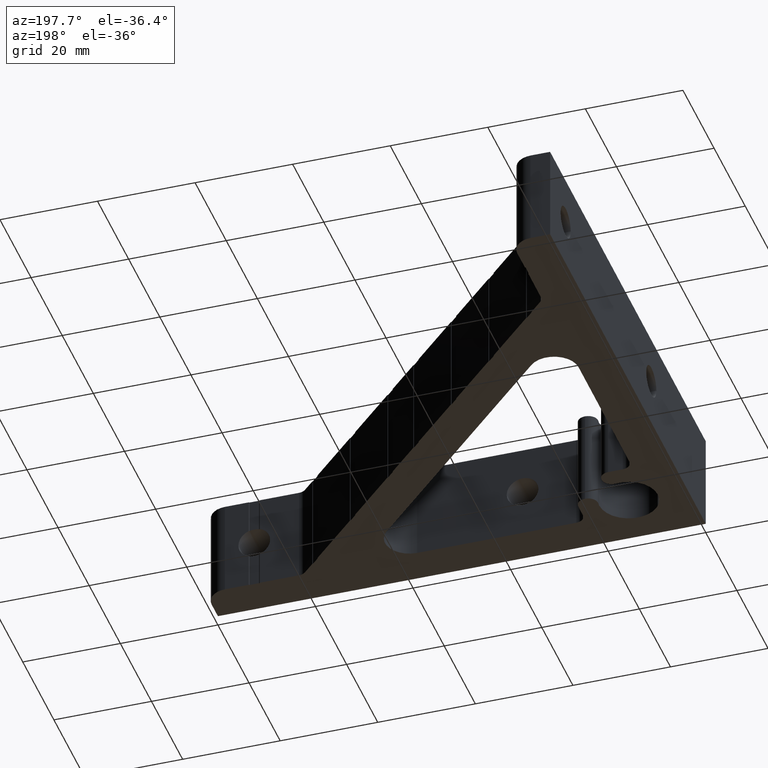
[diagram: clean part render]
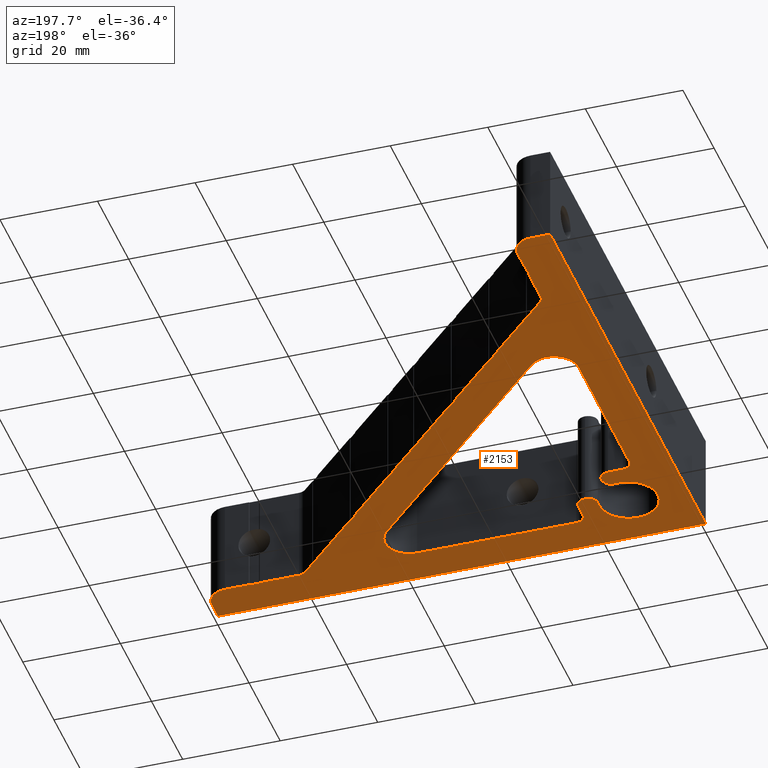
[diagram: same view with one face highlighted and labeled with its STEP entity id]
A machine part, auxiliary view. The second image highlights one B-rep face of the part: STEP entity #2153.
In plain terms, the highlighted planar face has unit normal (-0, 0, -1).
Its self-contained STEP definition (entity closure, byte-faithful):
#1 = DIRECTION ( 'NONE',  ( 0.0000000000000000000, 1.000000000000000000, 0.0000000000000000000 ) ) ;
#6 = CARTESIAN_POINT ( 'NONE',  ( 8.585786437626911300, 79.41421356237306400, 0.0000000000000000000 ) ) ;
#7 = DIRECTION ( 'NONE',  ( -0.7071067811865477900, 0.7071067811865473500, -0.0000000000000000000 ) ) ;
#16 = CARTESIAN_POINT ( 'NONE',  ( 33.92480755315680300, 95.99999999999997200, 0.0000000000000000000 ) ) ;
#17 = DIRECTION ( 'NONE',  ( -0.0000000000000000000, -1.000000000000000000, -0.0000000000000000000 ) ) ;
#18 = CARTESIAN_POINT ( 'NONE',  ( 24.00000000000001400, 8.000000000000000000, 0.0000000000000000000 ) ) ;
#19 = DIRECTION ( 'NONE',  ( 1.000000000000000000, 0.0000000000000000000, 0.0000000000000000000 ) ) ;
#20 = CARTESIAN_POINT ( 'NONE',  ( -2.070710678118733700, 89.92928932188118600, 0.0000000000000000000 ) ) ;
#21 = DIRECTION ( 'NONE',  ( -0.7071067811865510100, 0.7071067811865441300, 0.0000000000000000000 ) ) ;
#24 = CARTESIAN_POINT ( 'NONE',  ( 3.999999999988505600, 10.80025743823635800, 0.0000000000000000000 ) ) ;
#25 = DIRECTION ( 'NONE',  ( 1.000000000000000000, -1.349298206681400400E-013, -0.0000000000000000000 ) ) ;
#26 = CARTESIAN_POINT ( 'NONE',  ( 75.64410764316312500, 95.99999999999997200, 0.0000000000000000000 ) ) ;
#27 = DIRECTION ( 'NONE',  ( -0.0000000000000000000, -1.000000000000000000, -0.0000000000000000000 ) ) ;
#28 = CARTESIAN_POINT ( 'NONE',  ( 53.01669064519660400, 95.99999999999757000, 0.0000000000000000000 ) ) ;
#29 = DIRECTION ( 'NONE',  ( -4.906538933387633100E-014, -1.000000000000000000, -0.0000000000000000000 ) ) ;
#57 = CARTESIAN_POINT ( 'NONE',  ( 4.000000000003072200, 33.42767443619350600, 0.0000000000000000000 ) ) ;
#58 = DIRECTION ( 'NONE',  ( 1.000000000000000000, 4.906538933386670100E-014, -0.0000000000000000000 ) ) ;
#61 = CARTESIAN_POINT ( 'NONE',  ( 8.585786437626911300, 79.41421356237306400, 0.0000000000000000000 ) ) ;
#62 = DIRECTION ( 'NONE',  ( -0.7071067811865477900, 0.7071067811865473500, -0.0000000000000000000 ) ) ;
#63 = CARTESIAN_POINT ( 'NONE',  ( 80.82842712474619900, 7.999999999999998200, 0.0000000000000000000 ) ) ;
#64 = DIRECTION ( 'NONE',  ( -1.000000000000000000, -1.143403844967386000E-016, -0.0000000000000000000 ) ) ;
#69 = CARTESIAN_POINT ( 'NONE',  ( 56.61522368914977200, 13.00000000000000200, 0.0000000000000000000 ) ) ;
#70 = DIRECTION ( 'NONE',  ( 0.0000000000000000000, 0.0000000000000000000, 1.000000000000000000 ) ) ;
#71 = DIRECTION ( 'NONE',  ( -1.000000000000000000, 0.0000000000000000000, 0.0000000000000000000 ) ) ;
#76 = CARTESIAN_POINT ( 'NONE',  ( 19.93725393319377300, 13.00000000000000000, 0.0000000000000000000 ) ) ;
#77 = DIRECTION ( 'NONE',  ( -0.0000000000000000000, -0.0000000000000000000, -1.000000000000000000 ) ) ;
#78 = DIRECTION ( 'NONE',  ( 1.000000000000000000, 0.0000000000000000000, 0.0000000000000000000 ) ) ;
#91 = CARTESIAN_POINT ( 'NONE',  ( 12.99999999999999800, 19.99999999999999600, 0.0000000000000000000 ) ) ;
#92 = DIRECTION ( 'NONE',  ( -0.0000000000000000000, -0.0000000000000000000, -1.000000000000000000 ) ) ;
#93 = DIRECTION ( 'NONE',  ( 1.000000000000000000, 0.0000000000000000000, 0.0000000000000000000 ) ) ;
#119 = EDGE_CURVE ( 'NONE', #2409, #1117, #574, .T. ) ;
#121 = EDGE_CURVE ( 'NONE', #1848, #1942, #578, .T. ) ;
#123 = EDGE_CURVE ( 'NONE', #2438, #1895, #582, .T. ) ;
#126 = EDGE_CURVE ( 'NONE', #1891, #1937, #584, .T. ) ;
#128 = EDGE_CURVE ( 'NONE', #1037, #2446, #589, .T. ) ;
#130 = EDGE_CURVE ( 'NONE', #2450, #1867, #593, .T. ) ;
#133 = EDGE_CURVE ( 'NONE', #1011, #1935, #599, .T. ) ;
#134 = EDGE_CURVE ( 'NONE', #1898, #1916, #601, .T. ) ;
#139 = EDGE_CURVE ( 'NONE', #1848, #1916, #611, .T. ) ;
#143 = EDGE_CURVE ( 'NONE', #1072, #1091, #620, .T. ) ;
#144 = EDGE_CURVE ( 'NONE', #2419, #1941, #619, .T. ) ;
#149 = EDGE_CURVE ( 'NONE', #1051, #1135, #156, .T. ) ;
#152 = EDGE_CURVE ( 'NONE', #1889, #2421, #161, .T. ) ;
#156 = CIRCLE ( 'NONE', #1951, 6.000000000000001800 ) ;
#161 = CIRCLE ( 'NONE', #1959, 6.000000000000001800 ) ;
#181 = LINE ( 'NONE', #1310, #182 ) ;
#182 = VECTOR ( 'NONE', #1298, 1000.000000000000000 ) ;
#189 = LINE ( 'NONE', #1325, #190 ) ;
#190 = VECTOR ( 'NONE', #1305, 999.9999999999998900 ) ;
#193 = LINE ( 'NONE', #1319, #194 ) ;
#194 = VECTOR ( 'NONE', #1321, 1000.000000000000000 ) ;
#197 = LINE ( 'NONE', #1314, #198 ) ;
#198 = VECTOR ( 'NONE', #1303, 999.9999999999998900 ) ;
#205 = LINE ( 'NONE', #1306, #206 ) ;
#206 = VECTOR ( 'NONE', #1301, 999.9999999999998900 ) ;
#219 = LINE ( 'NONE', #1266, #220 ) ;
#220 = VECTOR ( 'NONE', #1221, 999.9999999999998900 ) ;
#221 = LINE ( 'NONE', #1263, #222 ) ;
#222 = VECTOR ( 'NONE', #1214, 1000.000000000000000 ) ;
#223 = CIRCLE ( 'NONE', #2720, 1.999999999999998200 ) ;
#229 = LINE ( 'NONE', #1276, #230 ) ;
#230 = VECTOR ( 'NONE', #1212, 1000.000000000000000 ) ;
#236 = LINE ( 'NONE', #1224, #237 ) ;
#237 = VECTOR ( 'NONE', #1233, 1000.000000000000000 ) ;
#238 = LINE ( 'NONE', #1205, #239 ) ;
#239 = VECTOR ( 'NONE', #1235, 1000.000000000000000 ) ;
#248 = LINE ( 'NONE', #2752, #249 ) ;
#249 = VECTOR ( 'NONE', #2735, 1000.000000000000000 ) ;
#254 = CIRCLE ( 'NONE', #2723, 2.000000000000000000 ) ;
#258 = LINE ( 'NONE', #2747, #260 ) ;
#260 = VECTOR ( 'NONE', #2741, 999.9999999999998900 ) ;
#266 = LINE ( 'NONE', #1371, #267 ) ;
#267 = VECTOR ( 'NONE', #1341, 1000.000000000000100 ) ;
#272 = LINE ( 'NONE', #1365, #273 ) ;
#273 = VECTOR ( 'NONE', #1353, 1000.000000000000100 ) ;
#276 = LINE ( 'NONE', #1354, #277 ) ;
#277 = VECTOR ( 'NONE', #1344, 1000.000000000000000 ) ;
#280 = LINE ( 'NONE', #1369, #281 ) ;
#281 = VECTOR ( 'NONE', #1355, 1000.000000000000000 ) ;
#283 = CIRCLE ( 'NONE', #2716, 2.000000000000001800 ) ;
#309 = EDGE_CURVE ( 'NONE', #2432, #1881, #181, .T. ) ;
#313 = EDGE_CURVE ( 'NONE', #1939, #1944, #189, .T. ) ;
#315 = EDGE_CURVE ( 'NONE', #1050, #2447, #193, .T. ) ;
#317 = EDGE_CURVE ( 'NONE', #2450, #1941, #197, .T. ) ;
#321 = EDGE_CURVE ( 'NONE', #1027, #2447, #205, .T. ) ;
#328 = EDGE_CURVE ( 'NONE', #1059, #1107, #219, .T. ) ;
#329 = EDGE_CURVE ( 'NONE', #1855, #2406, #221, .T. ) ;
#330 = EDGE_CURVE ( 'NONE', #1854, #1026, #223, .T. ) ;
#334 = EDGE_CURVE ( 'NONE', #1935, #1883, #229, .T. ) ;
#402 = LINE ( 'NONE', #2114, #404 ) ;
#404 = VECTOR ( 'NONE', #2104, 1000.000000000000100 ) ;
#417 = LINE ( 'NONE', #2109, #419 ) ;
#419 = VECTOR ( 'NONE', #2121, 1000.000000000000000 ) ;
#420 = LINE ( 'NONE', #2127, #421 ) ;
#421 = VECTOR ( 'NONE', #2132, 1000.000000000000000 ) ;
#422 = LINE ( 'NONE', #2124, #423 ) ;
#423 = VECTOR ( 'NONE', #2098, 1000.000000000000000 ) ;
#429 = LINE ( 'NONE', #1378, #430 ) ;
#430 = VECTOR ( 'NONE', #1377, 1000.000000000000000 ) ;
#432 = LINE ( 'NONE', #2066, #434 ) ;
#434 = VECTOR ( 'NONE', #2071, 1000.000000000000100 ) ;
#435 = LINE ( 'NONE', #2051, #436 ) ;
#436 = VECTOR ( 'NONE', #2059, 1000.000000000000000 ) ;
#440 = LINE ( 'NONE', #2069, #442 ) ;
#442 = VECTOR ( 'NONE', #2076, 1000.000000000000000 ) ;
#449 = LINE ( 'NONE', #1632, #451 ) ;
#451 = VECTOR ( 'NONE', #1630, 1000.000000000000100 ) ;
#492 = EDGE_LOOP ( 'NONE', ( #2302, #2303, #2304, #2305, #2306, #2307, #2308, #2309, #2310, #2311, #2312, #2313, #2314, #2315, #2316, #2317, #2318, #2319, #2320, #2321, #2322, #2323, #2324, #2325, #2326, #2327, #2328, #2329, #2330, #2331, #543, #544, #545, #546, #547, #548, #549, #550, #551, #552, #553, #554, #555, #556, #557, #558, #559 ) ) ;
#532 = EDGE_LOOP ( 'NONE', ( #560, #561, #562, #563, #564, #565, #566, #567, #568, #569, #570, #571, #572, #573, #2631, #2632, #2633, #2634, #2635 ) ) ;
#543 = ORIENTED_EDGE ( 'NONE', *, *, #1163, .T. ) ;
#544 = ORIENTED_EDGE ( 'NONE', *, *, #1178, .F. ) ;
#545 = ORIENTED_EDGE ( 'NONE', *, *, #2591, .T. ) ;
#546 = ORIENTED_EDGE ( 'NONE', *, *, #1960, .F. ) ;
#547 = ORIENTED_EDGE ( 'NONE', *, *, #2604, .T. ) ;
#548 = ORIENTED_EDGE ( 'NONE', *, *, #2580, .F. ) ;
#549 = ORIENTED_EDGE ( 'NONE', *, *, #134, .T. ) ;
#550 = ORIENTED_EDGE ( 'NONE', *, *, #139, .F. ) ;
#551 = ORIENTED_EDGE ( 'NONE', *, *, #121, .T. ) ;
#552 = ORIENTED_EDGE ( 'NONE', *, *, #2606, .F. ) ;
#553 = ORIENTED_EDGE ( 'NONE', *, *, #2590, .T. ) ;
#554 = ORIENTED_EDGE ( 'NONE', *, *, #2002, .F. ) ;
#555 = ORIENTED_EDGE ( 'NONE', *, *, #2589, .T. ) ;
#556 = ORIENTED_EDGE ( 'NONE', *, *, #2576, .F. ) ;
#557 = ORIENTED_EDGE ( 'NONE', *, *, #123, .F. ) ;
#558 = ORIENTED_EDGE ( 'NONE', *, *, #2006, .F. ) ;
#559 = ORIENTED_EDGE ( 'NONE', *, *, #2559, .T. ) ;
#560 = ORIENTED_EDGE ( 'NONE', *, *, #329, .T. ) ;
#561 = ORIENTED_EDGE ( 'NONE', *, *, #2549, .T. ) ;
#562 = ORIENTED_EDGE ( 'NONE', *, *, #309, .T. ) ;
#563 = ORIENTED_EDGE ( 'NONE', *, *, #1172, .T. ) ;
#564 = ORIENTED_EDGE ( 'NONE', *, *, #1189, .T. ) ;
#565 = ORIENTED_EDGE ( 'NONE', *, *, #2619, .T. ) ;
#566 = ORIENTED_EDGE ( 'NONE', *, *, #2574, .T. ) ;
#567 = ORIENTED_EDGE ( 'NONE', *, *, #2029, .T. ) ;
#568 = ORIENTED_EDGE ( 'NONE', *, *, #152, .T. ) ;
#569 = ORIENTED_EDGE ( 'NONE', *, *, #2031, .T. ) ;
#570 = ORIENTED_EDGE ( 'NONE', *, *, #149, .T. ) ;
#571 = ORIENTED_EDGE ( 'NONE', *, *, #2613, .T. ) ;
#572 = ORIENTED_EDGE ( 'NONE', *, *, #143, .T. ) ;
#573 = ORIENTED_EDGE ( 'NONE', *, *, #2010, .T. ) ;
#574 = LINE ( 'NONE', #1034, #575 ) ;
#575 = VECTOR ( 'NONE', #1052, 1000.000000000000000 ) ;
#578 = LINE ( 'NONE', #1098, #579 ) ;
#579 = VECTOR ( 'NONE', #1021, 1000.000000000000000 ) ;
#582 = CIRCLE ( 'NONE', #1967, 2.000000000000001800 ) ;
#584 = LINE ( 'NONE', #1035, #586 ) ;
#586 = VECTOR ( 'NONE', #1119, 1000.000000000000100 ) ;
#589 = LINE ( 'NONE', #1124, #590 ) ;
#590 = VECTOR ( 'NONE', #1109, 1000.000000000000200 ) ;
#593 = LINE ( 'NONE', #1033, #594 ) ;
#594 = VECTOR ( 'NONE', #1082, 1000.000000000000000 ) ;
#599 = LINE ( 'NONE', #1064, #600 ) ;
#600 = VECTOR ( 'NONE', #1108, 1000.000000000000000 ) ;
#601 = LINE ( 'NONE', #1083, #602 ) ;
#602 = VECTOR ( 'NONE', #1019, 1000.000000000000000 ) ;
#611 = LINE ( 'NONE', #1040, #612 ) ;
#612 = VECTOR ( 'NONE', #1121, 1000.000000000000100 ) ;
#619 = LINE ( 'NONE', #1042, #621 ) ;
#620 = CIRCLE ( 'NONE', #1961, 2.000000000000001800 ) ;
#621 = VECTOR ( 'NONE', #1058, 1000.000000000000000 ) ;
#658 = AXIS2_PLACEMENT_3D ( 'NONE', #1414, #1415, #1422 ) ;
#673 = AXIS2_PLACEMENT_3D ( 'NONE', #1396, #1397, #1403 ) ;
#685 = CARTESIAN_POINT ( 'NONE',  ( 15.00000000000000000, 19.93725393319376900, 0.0000000000000000000 ) ) ;
#686 = CARTESIAN_POINT ( 'NONE',  ( 79.41421356237309200, 8.585786437626909500, 0.0000000000000000000 ) ) ;
#688 = CARTESIAN_POINT ( 'NONE',  ( 64.33039914417834400, 23.66960085582164900, 0.0000000000000000000 ) ) ;
#690 = CARTESIAN_POINT ( 'NONE',  ( 7.900000000000000400, 88.99999999999998600, 0.0000000000000000000 ) ) ;
#696 = CARTESIAN_POINT ( 'NONE',  ( 10.00000000000002500, 22.00000000000000000, 0.0000000000000000000 ) ) ;
#700 = CARTESIAN_POINT ( 'NONE',  ( 56.61522368914965900, 8.000000000000000000, 0.0000000000000000000 ) ) ;
#872 = LINE ( 'NONE', #1406, #873 ) ;
#873 = VECTOR ( 'NONE', #1391, 1000.000000000000000 ) ;
#882 = LINE ( 'NONE', #1399, #883 ) ;
#883 = VECTOR ( 'NONE', #1398, 1000.000000000000000 ) ;
#885 = CIRCLE ( 'NONE', #673, 2.000000000000000000 ) ;
#888 = CIRCLE ( 'NONE', #658, 6.000000000000001800 ) ;
#914 = FACE_OUTER_BOUND ( 'NONE', #492, .T. ) ;
#915 = FACE_BOUND ( 'NONE', #532, .T. ) ;
#958 = CIRCLE ( 'NONE', #2865, 5.000000000000000900 ) ;
#968 = CIRCLE ( 'NONE', #2863, 4.000000000000003600 ) ;
#974 = LINE ( 'NONE', #1512, #975 ) ;
#975 = VECTOR ( 'NONE', #1549, 1000.000000000000100 ) ;
#1000 = LINE ( 'NONE', #2755, #1002 ) ;
#1001 = CIRCLE ( 'NONE', #1981, 4.000000000000000900 ) ;
#1002 = VECTOR ( 'NONE', #2754, 1000.000000000000000 ) ;
#1011 = VERTEX_POINT ( 'NONE', #1269 ) ;
#1015 = CARTESIAN_POINT ( 'NONE',  ( 19.93725393319377300, 13.00000000000000000, 0.0000000000000000000 ) ) ;
#1019 = DIRECTION ( 'NONE',  ( 9.813077866774303200E-014, -1.000000000000000000, -0.0000000000000000000 ) ) ;
#1021 = DIRECTION ( 'NONE',  ( 1.000000000000000000, -0.0000000000000000000, -0.0000000000000000000 ) ) ;
#1022 = CARTESIAN_POINT ( 'NONE',  ( 12.00000000000000000, 11.99999999999999800, 0.0000000000000000000 ) ) ;
#1026 = VERTEX_POINT ( 'NONE', #1216 ) ;
#1027 = VERTEX_POINT ( 'NONE', #1237 ) ;
#1028 = DIRECTION ( 'NONE',  ( 0.0000000000000000000, 0.0000000000000000000, 1.000000000000000000 ) ) ;
#1032 = DIRECTION ( 'NONE',  ( 1.000000000000000000, 0.0000000000000000000, 0.0000000000000000000 ) ) ;
#1033 = CARTESIAN_POINT ( 'NONE',  ( 22.61109905417203700, 95.99999999999997200, 0.0000000000000000000 ) ) ;
#1034 = CARTESIAN_POINT ( 'NONE',  ( 4.000000000000001800, 7.900000000000003900, 0.0000000000000000000 ) ) ;
#1035 = CARTESIAN_POINT ( 'NONE',  ( -2.070710678118637700, 89.92928932188134200, 0.0000000000000000000 ) ) ;
#1036 = VERTEX_POINT ( 'NONE', #1277 ) ;
#1037 = VERTEX_POINT ( 'NONE', #1262 ) ;
#1040 = CARTESIAN_POINT ( 'NONE',  ( -2.070710678118643500, 89.92928932188132800, 0.0000000000000000000 ) ) ;
#1041 = CARTESIAN_POINT ( 'NONE',  ( 80.82842712474619900, 9.999999999999998200, 0.0000000000000000000 ) ) ;
#1042 = CARTESIAN_POINT ( 'NONE',  ( 3.999999999997955900, 75.14697452620313800, 0.0000000000000000000 ) ) ;
#1050 = VERTEX_POINT ( 'NONE', #1255 ) ;
#1051 = VERTEX_POINT ( 'NONE', #1222 ) ;
#1052 = DIRECTION ( 'NONE',  ( -1.000000000000000000, 0.0000000000000000000, 0.0000000000000000000 ) ) ;
#1058 = DIRECTION ( 'NONE',  ( 1.000000000000000000, -9.813077866772377100E-014, -0.0000000000000000000 ) ) ;
#1059 = VERTEX_POINT ( 'NONE', #1272 ) ;
#1060 = CARTESIAN_POINT ( 'NONE',  ( 12.00000000000000000, 11.99999999999999800, 0.0000000000000000000 ) ) ;
#1064 = CARTESIAN_POINT ( 'NONE',  ( 0.0000000000000000000, 0.0000000000000000000, 0.0000000000000000000 ) ) ;
#1068 = VERTEX_POINT ( 'NONE', #1213 ) ;
#1072 = VERTEX_POINT ( 'NONE', #1239 ) ;
#1075 = DIRECTION ( 'NONE',  ( 1.000000000000000000, 0.0000000000000000000, 0.0000000000000000000 ) ) ;
#1077 = DIRECTION ( 'NONE',  ( 1.000000000000000000, 0.0000000000000000000, 0.0000000000000000000 ) ) ;
#1082 = DIRECTION ( 'NONE',  ( -0.0000000000000000000, -1.000000000000000000, -0.0000000000000000000 ) ) ;
#1083 = CARTESIAN_POINT ( 'NONE',  ( 64.33039914417125300, 96.00000000000589800, 0.0000000000000000000 ) ) ;
#1084 = VERTEX_POINT ( 'NONE', #1206 ) ;
#1091 = VERTEX_POINT ( 'NONE', #1207 ) ;
#1094 = DIRECTION ( 'NONE',  ( -0.0000000000000000000, -0.0000000000000000000, -1.000000000000000000 ) ) ;
#1095 = DIRECTION ( 'NONE',  ( -0.0000000000000000000, -0.0000000000000000000, -1.000000000000000000 ) ) ;
#1097 = DIRECTION ( 'NONE',  ( 1.000000000000000000, 0.0000000000000000000, 0.0000000000000000000 ) ) ;
#1098 = CARTESIAN_POINT ( 'NONE',  ( 4.000000000000001800, 22.11396593721123700, 0.0000000000000000000 ) ) ;
#1107 = VERTEX_POINT ( 'NONE', #1220 ) ;
#1108 = DIRECTION ( 'NONE',  ( 1.000000000000000000, 0.0000000000000000000, 0.0000000000000000000 ) ) ;
#1109 = DIRECTION ( 'NONE',  ( -0.7071067811865458000, 0.7071067811865492400, 0.0000000000000000000 ) ) ;
#1116 = DIRECTION ( 'NONE',  ( 0.0000000000000000000, 0.0000000000000000000, 1.000000000000000000 ) ) ;
#1117 = VERTEX_POINT ( 'NONE', #1217 ) ;
#1119 = DIRECTION ( 'NONE',  ( -0.7071067811865474600, 0.7071067811865474600, 0.0000000000000000000 ) ) ;
#1121 = DIRECTION ( 'NONE',  ( -0.7071067811865474600, 0.7071067811865474600, 0.0000000000000000000 ) ) ;
#1124 = CARTESIAN_POINT ( 'NONE',  ( -2.070710678118562200, 89.92928932188142700, 0.0000000000000000000 ) ) ;
#1135 = VERTEX_POINT ( 'NONE', #1256 ) ;
#1163 = EDGE_CURVE ( 'NONE', #1891, #1931, #236, .T. ) ;
#1164 = EDGE_CURVE ( 'NONE', #1037, #1944, #238, .T. ) ;
#1169 = EDGE_CURVE ( 'NONE', #1026, #2445, #248, .T. ) ;
#1172 = EDGE_CURVE ( 'NONE', #1881, #1910, #254, .T. ) ;
#1178 = EDGE_CURVE ( 'NONE', #1036, #1931, #258, .T. ) ;
#1184 = EDGE_CURVE ( 'NONE', #1912, #2426, #266, .T. ) ;
#1187 = EDGE_CURVE ( 'NONE', #2409, #1894, #272, .T. ) ;
#1189 = EDGE_CURVE ( 'NONE', #1910, #2449, #276, .T. ) ;
#1191 = EDGE_CURVE ( 'NONE', #1859, #1922, #280, .T. ) ;
#1193 = EDGE_CURVE ( 'NONE', #1107, #2408, #283, .T. ) ;
#1201 = DIRECTION ( 'NONE',  ( -1.000000000000000000, 0.0000000000000000000, 0.0000000000000000000 ) ) ;
#1205 = CARTESIAN_POINT ( 'NONE',  ( 4.000000000004268600, 52.51955752822971100, 0.0000000000000000000 ) ) ;
#1206 = CARTESIAN_POINT ( 'NONE',  ( 7.900000000000000400, 90.99999999999998600, 0.0000000000000000000 ) ) ;
#1207 = CARTESIAN_POINT ( 'NONE',  ( 19.93725393319377300, 15.00000000000000000, 0.0000000000000000000 ) ) ;
#1212 = DIRECTION ( 'NONE',  ( -0.0000000000000000000, 1.000000000000000000, -0.0000000000000000000 ) ) ;
#1213 = CARTESIAN_POINT ( 'NONE',  ( 53.01669064519359900, 34.84188799856910600, 0.0000000000000000000 ) ) ;
#1214 = DIRECTION ( 'NONE',  ( -0.7071067811865476800, 0.7071067811865474600, -0.0000000000000000000 ) ) ;
#1216 = CARTESIAN_POINT ( 'NONE',  ( 22.00000000000000000, 12.99999999999998800, 0.0000000000000000000 ) ) ;
#1217 = CARTESIAN_POINT ( 'NONE',  ( 89.00000000000001400, 7.900000000000003900, 0.0000000000000000000 ) ) ;
#1220 = CARTESIAN_POINT ( 'NONE',  ( 8.585786437626911300, 79.41421356237306400, 0.0000000000000000000 ) ) ;
#1221 = DIRECTION ( 'NONE',  ( -0.7071067811865477900, 0.7071067811865473500, -0.0000000000000000000 ) ) ;
#1222 = CARTESIAN_POINT ( 'NONE',  ( 18.00000000000000400, 11.99999999999999800, 0.0000000000000000000 ) ) ;
#1224 = CARTESIAN_POINT ( 'NONE',  ( 3.999999999997312800, 41.20584902925011800, 0.0000000000000000000 ) ) ;
#1229 = CARTESIAN_POINT ( 'NONE',  ( 20.00000000000000000, 13.00000000000000000, 0.0000000000000000000 ) ) ;
#1233 = DIRECTION ( 'NONE',  ( 1.000000000000000000, -4.906538933387392000E-014, -0.0000000000000000000 ) ) ;
#1235 = DIRECTION ( 'NONE',  ( 1.000000000000000000, 9.813077866776229300E-014, -0.0000000000000000000 ) ) ;
#1237 = CARTESIAN_POINT ( 'NONE',  ( 33.92480755315680300, 54.07519244684318200, 0.0000000000000000000 ) ) ;
#1239 = CARTESIAN_POINT ( 'NONE',  ( 17.93725393319377300, 13.00000000000000000, 0.0000000000000000000 ) ) ;
#1253 = DIRECTION ( 'NONE',  ( -0.0000000000000000000, -0.0000000000000000000, -1.000000000000000000 ) ) ;
#1255 = CARTESIAN_POINT ( 'NONE',  ( 24.02531261654515000, 63.83326602721754700, 0.0000000000000000000 ) ) ;
#1256 = CARTESIAN_POINT ( 'NONE',  ( 17.95294044989533000, 12.75000000000000000, 0.0000000000000000000 ) ) ;
#1262 = CARTESIAN_POINT ( 'NONE',  ( 35.33902111552991700, 52.51955752823278100, 0.0000000000000000000 ) ) ;
#1263 = CARTESIAN_POINT ( 'NONE',  ( 16.53553390593282700, 60.15075759508240300, 0.0000000000000000000 ) ) ;
#1266 = CARTESIAN_POINT ( 'NONE',  ( 8.585786437626911300, 79.41421356237306400, 0.0000000000000000000 ) ) ;
#1269 = CARTESIAN_POINT ( 'NONE',  ( 0.0000000000000000000, 0.0000000000000000000, 0.0000000000000000000 ) ) ;
#1272 = CARTESIAN_POINT ( 'NONE',  ( 11.29739055518731300, 76.70260944481266600, 0.0000000000000000000 ) ) ;
#1276 = CARTESIAN_POINT ( 'NONE',  ( 100.0000000000000000, 3.999999999999972500, 0.0000000000000000000 ) ) ;
#1277 = CARTESIAN_POINT ( 'NONE',  ( 53.01669064519360600, 34.98330935480639400, 0.0000000000000000000 ) ) ;
#1298 = DIRECTION ( 'NONE',  ( 1.595626164496224300E-016, -1.000000000000000000, 0.0000000000000000000 ) ) ;
#1301 = DIRECTION ( 'NONE',  ( -0.7071067811865477900, 0.7071067811865473500, -0.0000000000000000000 ) ) ;
#1303 = DIRECTION ( 'NONE',  ( -0.7071067811865477900, 0.7071067811865473500, -0.0000000000000000000 ) ) ;
#1305 = DIRECTION ( 'NONE',  ( -0.7071067811865477900, 0.7071067811865473500, -0.0000000000000000000 ) ) ;
#1306 = CARTESIAN_POINT ( 'NONE',  ( 8.585786437626911300, 79.41421356237306400, 0.0000000000000000000 ) ) ;
#1310 = CARTESIAN_POINT ( 'NONE',  ( 8.000000000000005300, 56.61522368914963000, 0.0000000000000000000 ) ) ;
#1314 = CARTESIAN_POINT ( 'NONE',  ( 8.585786437626911300, 79.41421356237306400, 0.0000000000000000000 ) ) ;
#1319 = CARTESIAN_POINT ( 'NONE',  ( 4.000000000003158400, 63.83326602721559300, 0.0000000000000000000 ) ) ;
#1321 = DIRECTION ( 'NONE',  ( 1.000000000000000000, 9.813077866776710200E-014, -0.0000000000000000000 ) ) ;
#1325 = CARTESIAN_POINT ( 'NONE',  ( 8.585786437626911300, 79.41421356237306400, 0.0000000000000000000 ) ) ;
#1332 = DIRECTION ( 'NONE',  ( -0.0000000000000000000, -0.0000000000000000000, -1.000000000000000000 ) ) ;
#1341 = DIRECTION ( 'NONE',  ( 0.7071067811865474600, -0.7071067811865474600, -0.0000000000000000000 ) ) ;
#1344 = DIRECTION ( 'NONE',  ( 1.000000000000000000, 0.0000000000000000000, 0.0000000000000000000 ) ) ;
#1345 = CARTESIAN_POINT ( 'NONE',  ( 10.00000000000000200, 80.82842712474617000, 0.0000000000000000000 ) ) ;
#1353 = DIRECTION ( 'NONE',  ( 0.7071067811865474600, 0.7071067811865474600, -0.0000000000000000000 ) ) ;
#1354 = CARTESIAN_POINT ( 'NONE',  ( 10.00000000000002500, 22.00000000000000000, 0.0000000000000000000 ) ) ;
#1355 = DIRECTION ( 'NONE',  ( -1.143403844967384000E-016, 1.000000000000000000, -0.0000000000000000000 ) ) ;
#1365 = CARTESIAN_POINT ( 'NONE',  ( 91.54999999999998300, 8.449999999999999300, 0.0000000000000000000 ) ) ;
#1369 = CARTESIAN_POINT ( 'NONE',  ( 8.000000000000000000, 95.99999999999997200, 0.0000000000000000000 ) ) ;
#1370 = DIRECTION ( 'NONE',  ( -1.000000000000000000, 0.0000000000000000000, 0.0000000000000000000 ) ) ;
#1371 = CARTESIAN_POINT ( 'NONE',  ( 2.450000000000010400, 94.44999999999997400, 0.0000000000000000000 ) ) ;
#1377 = DIRECTION ( 'NONE',  ( -0.7071067811865479100, 0.7071067811865471300, 0.0000000000000000000 ) ) ;
#1378 = CARTESIAN_POINT ( 'NONE',  ( -2.070710678118679000, 89.92928932188128500, 0.0000000000000000000 ) ) ;
#1381 = CARTESIAN_POINT ( 'NONE',  ( 24.00000000000000000, 10.00000000000000000, 0.0000000000000000000 ) ) ;
#1382 = DIRECTION ( 'NONE',  ( 0.0000000000000000000, 0.0000000000000000000, 1.000000000000000000 ) ) ;
#1391 = DIRECTION ( 'NONE',  ( -1.226634733347329500E-014, -1.000000000000000000, -0.0000000000000000000 ) ) ;
#1396 = CARTESIAN_POINT ( 'NONE',  ( 13.00000000000000000, 19.93725393319376900, 0.0000000000000000000 ) ) ;
#1397 = DIRECTION ( 'NONE',  ( -0.0000000000000000000, -0.0000000000000000000, -1.000000000000000000 ) ) ;
#1398 = DIRECTION ( 'NONE',  ( -1.143403844967384000E-016, 1.000000000000000000, -0.0000000000000000000 ) ) ;
#1399 = CARTESIAN_POINT ( 'NONE',  ( 8.000000000000000000, 95.99999999999997200, 0.0000000000000000000 ) ) ;
#1403 = DIRECTION ( 'NONE',  ( -1.000000000000000000, 0.0000000000000000000, 0.0000000000000000000 ) ) ;
#1406 = CARTESIAN_POINT ( 'NONE',  ( 11.29739055518754900, 95.99999999999988600, 0.0000000000000000000 ) ) ;
#1414 = CARTESIAN_POINT ( 'NONE',  ( 12.00000000000000000, 11.99999999999999800, 0.0000000000000000000 ) ) ;
#1415 = DIRECTION ( 'NONE',  ( 0.0000000000000000000, 0.0000000000000000000, 1.000000000000000000 ) ) ;
#1422 = DIRECTION ( 'NONE',  ( 1.000000000000000000, 0.0000000000000000000, 0.0000000000000000000 ) ) ;
#1431 = CARTESIAN_POINT ( 'NONE',  ( 96.00000000000000000, 4.000000000000000900, 0.0000000000000000000 ) ) ;
#1433 = CARTESIAN_POINT ( 'NONE',  ( 8.000000000000000000, 88.89999999999999100, 0.0000000000000000000 ) ) ;
#1442 = CARTESIAN_POINT ( 'NONE',  ( 80.82842712474619900, 7.999999999999998200, 0.0000000000000000000 ) ) ;
#1444 = CARTESIAN_POINT ( 'NONE',  ( 22.61109905417203700, 65.38890094582794200, 0.0000000000000000000 ) ) ;
#1445 = CARTESIAN_POINT ( 'NONE',  ( 12.71160411756039100, 75.14697452620231400, 0.0000000000000000000 ) ) ;
#1447 = CARTESIAN_POINT ( 'NONE',  ( 13.00000000000000500, 56.61522368914975100, 0.0000000000000000000 ) ) ;
#1471 = CARTESIAN_POINT ( 'NONE',  ( 6.000000000000000000, 11.99999999999999800, 0.0000000000000000000 ) ) ;
#1476 = DIRECTION ( 'NONE',  ( 1.000000000000000000, 0.0000000000000000000, 0.0000000000000000000 ) ) ;
#1494 = DIRECTION ( 'NONE',  ( 0.0000000000000000000, 0.0000000000000000000, 1.000000000000000000 ) ) ;
#1496 = PLANE ( 'NONE',  #1852 ) ;
#1501 = CARTESIAN_POINT ( 'NONE',  ( 22.00000000000000400, 10.00000000000001200, 0.0000000000000000000 ) ) ;
#1507 = CARTESIAN_POINT ( 'NONE',  ( 8.000000000000000000, 80.82842712474617000, 0.0000000000000000000 ) ) ;
#1511 = CARTESIAN_POINT ( 'NONE',  ( 8.000000000000005300, 56.61522368914963000, 0.0000000000000000000 ) ) ;
#1512 = CARTESIAN_POINT ( 'NONE',  ( 2.450000000000028200, 94.45000000000000300, 0.0000000000000000000 ) ) ;
#1522 = DIRECTION ( 'NONE',  ( -1.000000000000000000, 0.0000000000000000000, 0.0000000000000000000 ) ) ;
#1528 = CARTESIAN_POINT ( 'NONE',  ( 12.99999999999998400, 22.00000000000000000, 0.0000000000000000000 ) ) ;
#1533 = DIRECTION ( 'NONE',  ( -0.0000000000000000000, 0.0000000000000000000, -1.000000000000000000 ) ) ;
#1544 = DIRECTION ( 'NONE',  ( 0.0000000000000000000, 0.0000000000000000000, 1.000000000000000000 ) ) ;
#1549 = DIRECTION ( 'NONE',  ( 0.7071067811865474600, -0.7071067811865474600, -0.0000000000000000000 ) ) ;
#1562 = CARTESIAN_POINT ( 'NONE',  ( 11.29739055518730100, 76.56118808857540600, 0.0000000000000000000 ) ) ;
#1568 = CARTESIAN_POINT ( 'NONE',  ( 33.92480755315681100, 53.93377109060589400, 0.0000000000000000000 ) ) ;
#1575 = CARTESIAN_POINT ( 'NONE',  ( 91.00000000000001400, 7.900000000000003900, 0.0000000000000000000 ) ) ;
#1576 = CARTESIAN_POINT ( 'NONE',  ( 24.16673397278241400, 63.83326602721757600, 0.0000000000000000000 ) ) ;
#1577 = CARTESIAN_POINT ( 'NONE',  ( 88.90000000000006300, 7.999999999999989300, 0.0000000000000000000 ) ) ;
#1584 = CARTESIAN_POINT ( 'NONE',  ( 0.0000000000000000000, 99.99999999999997200, 0.0000000000000000000 ) ) ;
#1592 = CARTESIAN_POINT ( 'NONE',  ( 95.99999999999997200, 8.000000000000003600, 0.0000000000000000000 ) ) ;
#1593 = CARTESIAN_POINT ( 'NONE',  ( 4.000000000000001800, 95.99999999999997200, 0.0000000000000000000 ) ) ;
#1601 = CARTESIAN_POINT ( 'NONE',  ( 16.53553390593282700, 60.15075759508240300, 0.0000000000000000000 ) ) ;
#1623 = CARTESIAN_POINT ( 'NONE',  ( 75.64410764316312500, 12.35589235683688600, 0.0000000000000000000 ) ) ;
#1630 = DIRECTION ( 'NONE',  ( -0.7071067811865474600, -0.7071067811865474600, -0.0000000000000000000 ) ) ;
#1632 = CARTESIAN_POINT ( 'NONE',  ( 8.450000000000001100, 91.54999999999998300, 0.0000000000000000000 ) ) ;
#1641 = DIRECTION ( 'NONE',  ( -1.000000000000000000, 0.0000000000000000000, 0.0000000000000000000 ) ) ;
#1756 = CARTESIAN_POINT ( 'NONE',  ( 4.000000000000001800, 99.99999999999997200, 0.0000000000000000000 ) ) ;
#1759 = CARTESIAN_POINT ( 'NONE',  ( 65.74461270655145000, 22.11396593721123000, 0.0000000000000000000 ) ) ;
#1848 = VERTEX_POINT ( 'NONE', #1759 ) ;
#1851 = VERTEX_POINT ( 'NONE', #1756 ) ;
#1852 = AXIS2_PLACEMENT_3D ( 'NONE', #1593, #1533, #1641 ) ;
#1854 = VERTEX_POINT ( 'NONE', #2759 ) ;
#1855 = VERTEX_POINT ( 'NONE', #2761 ) ;
#1859 = VERTEX_POINT ( 'NONE', #2760 ) ;
#1867 = VERTEX_POINT ( 'NONE', #2777 ) ;
#1876 = VERTEX_POINT ( 'NONE', #2779 ) ;
#1879 = VERTEX_POINT ( 'NONE', #2766 ) ;
#1881 = VERTEX_POINT ( 'NONE', #2769 ) ;
#1883 = VERTEX_POINT ( 'NONE', #2773 ) ;
#1889 = VERTEX_POINT ( 'NONE', #2765 ) ;
#1891 = VERTEX_POINT ( 'NONE', #2775 ) ;
#1894 = VERTEX_POINT ( 'NONE', #2776 ) ;
#1895 = VERTEX_POINT ( 'NONE', #686 ) ;
#1898 = VERTEX_POINT ( 'NONE', #688 ) ;
#1902 = VERTEX_POINT ( 'NONE', #685 ) ;
#1906 = VERTEX_POINT ( 'NONE', #700 ) ;
#1910 = VERTEX_POINT ( 'NONE', #696 ) ;
#1912 = VERTEX_POINT ( 'NONE', #690 ) ;
#1916 = VERTEX_POINT ( 'NONE', #2041 ) ;
#1920 = VERTEX_POINT ( 'NONE', #2040 ) ;
#1922 = VERTEX_POINT ( 'NONE', #2095 ) ;
#1925 = VERTEX_POINT ( 'NONE', #2093 ) ;
#1926 = VERTEX_POINT ( 'NONE', #2094 ) ;
#1927 = VERTEX_POINT ( 'NONE', #2395 ) ;
#1931 = VERTEX_POINT ( 'NONE', #2393 ) ;
#1932 = VERTEX_POINT ( 'NONE', #2397 ) ;
#1935 = VERTEX_POINT ( 'NONE', #2399 ) ;
#1937 = VERTEX_POINT ( 'NONE', #2402 ) ;
#1939 = VERTEX_POINT ( 'NONE', #2405 ) ;
#1941 = VERTEX_POINT ( 'NONE', #2396 ) ;
#1942 = VERTEX_POINT ( 'NONE', #2386 ) ;
#1944 = VERTEX_POINT ( 'NONE', #2404 ) ;
#1945 = CARTESIAN_POINT ( 'NONE',  ( 7.900000000000000400, 95.99999999999997200, 0.0000000000000000000 ) ) ;
#1951 = AXIS2_PLACEMENT_3D ( 'NONE', #1022, #1116, #1032 ) ;
#1959 = AXIS2_PLACEMENT_3D ( 'NONE', #1060, #1028, #1075 ) ;
#1960 = EDGE_CURVE ( 'NONE', #1876, #1068, #402, .T. ) ;
#1961 = AXIS2_PLACEMENT_3D ( 'NONE', #1015, #1094, #1097 ) ;
#1967 = AXIS2_PLACEMENT_3D ( 'NONE', #1041, #1095, #1077 ) ;
#1978 = AXIS2_PLACEMENT_3D ( 'NONE', #69, #70, #71 ) ;
#1980 = AXIS2_PLACEMENT_3D ( 'NONE', #1381, #1382, #2758 ) ;
#1981 = AXIS2_PLACEMENT_3D ( 'NONE', #2757, #2718, #2717 ) ;
#1983 = AXIS2_PLACEMENT_3D ( 'NONE', #76, #77, #78 ) ;
#1992 = AXIS2_PLACEMENT_3D ( 'NONE', #91, #92, #93 ) ;
#1996 = EDGE_CURVE ( 'NONE', #2435, #1011, #417, .T. ) ;
#1997 = EDGE_CURVE ( 'NONE', #1851, #2435, #420, .T. ) ;
#1998 = EDGE_CURVE ( 'NONE', #1939, #1937, #422, .T. ) ;
#2002 = EDGE_CURVE ( 'NONE', #1920, #1927, #429, .T. ) ;
#2005 = EDGE_CURVE ( 'NONE', #2419, #2424, #432, .T. ) ;
#2006 = EDGE_CURVE ( 'NONE', #2427, #2438, #435, .T. ) ;
#2010 = EDGE_CURVE ( 'NONE', #1091, #1854, #440, .T. ) ;
#2015 = EDGE_CURVE ( 'NONE', #1859, #1084, #449, .T. ) ;
#2022 = EDGE_CURVE ( 'NONE', #1059, #2424, #872, .T. ) ;
#2028 = EDGE_CURVE ( 'NONE', #2408, #2426, #882, .T. ) ;
#2029 = EDGE_CURVE ( 'NONE', #1902, #1889, #885, .T. ) ;
#2031 = EDGE_CURVE ( 'NONE', #2421, #1051, #888, .T. ) ;
#2040 = CARTESIAN_POINT ( 'NONE',  ( 77.05832120553621700, 10.80025743822647600, 0.0000000000000000000 ) ) ;
#2041 = CARTESIAN_POINT ( 'NONE',  ( 64.33039914417835800, 23.52817949958432900, 0.0000000000000000000 ) ) ;
#2051 = CARTESIAN_POINT ( 'NONE',  ( 80.82842712474619900, 7.999999999999998200, 0.0000000000000000000 ) ) ;
#2059 = DIRECTION ( 'NONE',  ( -1.000000000000000000, -1.143403844967386000E-016, -0.0000000000000000000 ) ) ;
#2066 = CARTESIAN_POINT ( 'NONE',  ( -2.070710678118599500, 89.92928932188141300, 0.0000000000000000000 ) ) ;
#2069 = CARTESIAN_POINT ( 'NONE',  ( 19.93725393319377300, 15.00000000000000000, 0.0000000000000000000 ) ) ;
#2071 = DIRECTION ( 'NONE',  ( -0.7071067811865444600, 0.7071067811865505700, 0.0000000000000000000 ) ) ;
#2076 = DIRECTION ( 'NONE',  ( 1.000000000000000000, 0.0000000000000000000, 0.0000000000000000000 ) ) ;
#2093 = CARTESIAN_POINT ( 'NONE',  ( 24.00000000000001400, 8.000000000000000000, 0.0000000000000000000 ) ) ;
#2094 = CARTESIAN_POINT ( 'NONE',  ( 54.57232556380402100, 33.42767443619597900, 0.0000000000000000000 ) ) ;
#2095 = CARTESIAN_POINT ( 'NONE',  ( 8.000000000000000000, 95.99999999999997200, 0.0000000000000000000 ) ) ;
#2098 = DIRECTION ( 'NONE',  ( -0.0000000000000000000, -1.000000000000000000, -0.0000000000000000000 ) ) ;
#2104 = DIRECTION ( 'NONE',  ( -0.7071067811865474600, 0.7071067811865474600, 0.0000000000000000000 ) ) ;
#2109 = CARTESIAN_POINT ( 'NONE',  ( 0.0000000000000000000, 0.0000000000000000000, 0.0000000000000000000 ) ) ;
#2114 = CARTESIAN_POINT ( 'NONE',  ( -2.070710678118642600, 89.92928932188132800, 0.0000000000000000000 ) ) ;
#2121 = DIRECTION ( 'NONE',  ( -0.0000000000000000000, -1.000000000000000000, -0.0000000000000000000 ) ) ;
#2124 = CARTESIAN_POINT ( 'NONE',  ( 45.23851605214157000, 95.99999999999997200, 0.0000000000000000000 ) ) ;
#2127 = CARTESIAN_POINT ( 'NONE',  ( 0.0000000000000000000, 99.99999999999997200, 0.0000000000000000000 ) ) ;
#2132 = DIRECTION ( 'NONE',  ( -1.000000000000000000, -0.0000000000000000000, -0.0000000000000000000 ) ) ;
#2153 = ADVANCED_FACE ( 'NONE', ( #914, #915 ), #1496, .T. ) ;
#2170 = DIRECTION ( 'NONE',  ( -0.7071067811865477900, 0.7071067811865473500, -0.0000000000000000000 ) ) ;
#2171 = CARTESIAN_POINT ( 'NONE',  ( 8.585786437626911300, 79.41421356237306400, 0.0000000000000000000 ) ) ;
#2172 = LINE ( 'NONE', #2171, #2174 ) ;
#2173 = CIRCLE ( 'NONE', #1980, 1.999999999999998200 ) ;
#2174 = VECTOR ( 'NONE', #2170, 999.9999999999998900 ) ;
#2175 = LINE ( 'NONE', #1945, #2176 ) ;
#2176 = VECTOR ( 'NONE', #1, 1000.000000000000000 ) ;
#2181 = LINE ( 'NONE', #6, #2182 ) ;
#2182 = VECTOR ( 'NONE', #7, 999.9999999999998900 ) ;
#2191 = LINE ( 'NONE', #16, #2192 ) ;
#2192 = VECTOR ( 'NONE', #17, 1000.000000000000000 ) ;
#2193 = LINE ( 'NONE', #18, #2194 ) ;
#2194 = VECTOR ( 'NONE', #19, 1000.000000000000000 ) ;
#2195 = LINE ( 'NONE', #20, #2196 ) ;
#2196 = VECTOR ( 'NONE', #21, 999.9999999999998900 ) ;
#2199 = LINE ( 'NONE', #24, #2200 ) ;
#2200 = VECTOR ( 'NONE', #25, 1000.000000000000000 ) ;
#2201 = LINE ( 'NONE', #26, #2202 ) ;
#2202 = VECTOR ( 'NONE', #27, 1000.000000000000000 ) ;
#2203 = LINE ( 'NONE', #28, #2204 ) ;
#2204 = VECTOR ( 'NONE', #29, 1000.000000000000000 ) ;
#2226 = LINE ( 'NONE', #57, #2227 ) ;
#2227 = VECTOR ( 'NONE', #58, 1000.000000000000000 ) ;
#2230 = LINE ( 'NONE', #61, #2231 ) ;
#2231 = VECTOR ( 'NONE', #62, 999.9999999999998900 ) ;
#2232 = LINE ( 'NONE', #63, #2233 ) ;
#2233 = VECTOR ( 'NONE', #64, 1000.000000000000000 ) ;
#2239 = CIRCLE ( 'NONE', #1978, 4.999999999999997300 ) ;
#2243 = CIRCLE ( 'NONE', #1983, 2.000000000000001800 ) ;
#2252 = CIRCLE ( 'NONE', #1992, 2.000000000000001800 ) ;
#2302 = ORIENTED_EDGE ( 'NONE', *, *, #119, .F. ) ;
#2303 = ORIENTED_EDGE ( 'NONE', *, *, #1187, .T. ) ;
#2304 = ORIENTED_EDGE ( 'NONE', *, *, #2607, .F. ) ;
#2305 = ORIENTED_EDGE ( 'NONE', *, *, #2555, .F. ) ;
#2306 = ORIENTED_EDGE ( 'NONE', *, *, #334, .F. ) ;
#2307 = ORIENTED_EDGE ( 'NONE', *, *, #133, .F. ) ;
#2308 = ORIENTED_EDGE ( 'NONE', *, *, #1996, .F. ) ;
#2309 = ORIENTED_EDGE ( 'NONE', *, *, #1997, .F. ) ;
#2310 = ORIENTED_EDGE ( 'NONE', *, *, #2573, .F. ) ;
#2311 = ORIENTED_EDGE ( 'NONE', *, *, #1191, .F. ) ;
#2312 = ORIENTED_EDGE ( 'NONE', *, *, #2015, .T. ) ;
#2313 = ORIENTED_EDGE ( 'NONE', *, *, #2577, .F. ) ;
#2314 = ORIENTED_EDGE ( 'NONE', *, *, #1184, .T. ) ;
#2315 = ORIENTED_EDGE ( 'NONE', *, *, #2028, .F. ) ;
#2316 = ORIENTED_EDGE ( 'NONE', *, *, #1193, .F. ) ;
#2317 = ORIENTED_EDGE ( 'NONE', *, *, #328, .F. ) ;
#2318 = ORIENTED_EDGE ( 'NONE', *, *, #2022, .T. ) ;
#2319 = ORIENTED_EDGE ( 'NONE', *, *, #2005, .F. ) ;
#2320 = ORIENTED_EDGE ( 'NONE', *, *, #144, .T. ) ;
#2321 = ORIENTED_EDGE ( 'NONE', *, *, #317, .F. ) ;
#2322 = ORIENTED_EDGE ( 'NONE', *, *, #130, .T. ) ;
#2323 = ORIENTED_EDGE ( 'NONE', *, *, #2587, .F. ) ;
#2324 = ORIENTED_EDGE ( 'NONE', *, *, #315, .T. ) ;
#2325 = ORIENTED_EDGE ( 'NONE', *, *, #321, .F. ) ;
#2326 = ORIENTED_EDGE ( 'NONE', *, *, #2585, .T. ) ;
#2327 = ORIENTED_EDGE ( 'NONE', *, *, #128, .F. ) ;
#2328 = ORIENTED_EDGE ( 'NONE', *, *, #1164, .T. ) ;
#2329 = ORIENTED_EDGE ( 'NONE', *, *, #313, .F. ) ;
#2330 = ORIENTED_EDGE ( 'NONE', *, *, #1998, .T. ) ;
#2331 = ORIENTED_EDGE ( 'NONE', *, *, #126, .F. ) ;
#2386 = CARTESIAN_POINT ( 'NONE',  ( 65.88603406278875200, 22.11396593721123700, 0.0000000000000000000 ) ) ;
#2393 = CARTESIAN_POINT ( 'NONE',  ( 46.79415097075197800, 41.20584902924801400, 0.0000000000000000000 ) ) ;
#2395 = CARTESIAN_POINT ( 'NONE',  ( 75.64410764316312500, 12.21447100059956400, 0.0000000000000000000 ) ) ;
#2396 = CARTESIAN_POINT ( 'NONE',  ( 12.85302547379770400, 75.14697452620227100, 0.0000000000000000000 ) ) ;
#2397 = CARTESIAN_POINT ( 'NONE',  ( 14.99999999999999800, 19.99999999999998200, 0.0000000000000000000 ) ) ;
#2399 = CARTESIAN_POINT ( 'NONE',  ( 100.0000000000000000, 0.0000000000000000000, 0.0000000000000000000 ) ) ;
#2402 = CARTESIAN_POINT ( 'NONE',  ( 45.23851605214158400, 42.62006259162113500, 0.0000000000000000000 ) ) ;
#2404 = CARTESIAN_POINT ( 'NONE',  ( 35.48044247176719800, 52.51955752823280200, 0.0000000000000000000 ) ) ;
#2405 = CARTESIAN_POINT ( 'NONE',  ( 45.23851605214157000, 42.76148394785842300, 0.0000000000000000000 ) ) ;
#2406 = VERTEX_POINT ( 'NONE', #1601 ) ;
#2408 = VERTEX_POINT ( 'NONE', #1507 ) ;
#2409 = VERTEX_POINT ( 'NONE', #1575 ) ;
#2419 = VERTEX_POINT ( 'NONE', #1445 ) ;
#2421 = VERTEX_POINT ( 'NONE', #1471 ) ;
#2424 = VERTEX_POINT ( 'NONE', #1562 ) ;
#2426 = VERTEX_POINT ( 'NONE', #1433 ) ;
#2427 = VERTEX_POINT ( 'NONE', #1577 ) ;
#2429 = VERTEX_POINT ( 'NONE', #1623 ) ;
#2432 = VERTEX_POINT ( 'NONE', #1511 ) ;
#2433 = VERTEX_POINT ( 'NONE', #1592 ) ;
#2435 = VERTEX_POINT ( 'NONE', #1584 ) ;
#2438 = VERTEX_POINT ( 'NONE', #1442 ) ;
#2445 = VERTEX_POINT ( 'NONE', #1501 ) ;
#2446 = VERTEX_POINT ( 'NONE', #1568 ) ;
#2447 = VERTEX_POINT ( 'NONE', #1576 ) ;
#2449 = VERTEX_POINT ( 'NONE', #1528 ) ;
#2450 = VERTEX_POINT ( 'NONE', #1444 ) ;
#2549 = EDGE_CURVE ( 'NONE', #2406, #2432, #958, .T. ) ;
#2555 = EDGE_CURVE ( 'NONE', #1883, #2433, #968, .T. ) ;
#2559 = EDGE_CURVE ( 'NONE', #2427, #1117, #974, .T. ) ;
#2573 = EDGE_CURVE ( 'NONE', #1922, #1851, #1001, .T. ) ;
#2574 = EDGE_CURVE ( 'NONE', #1932, #1902, #1000, .T. ) ;
#2575 = EDGE_CURVE ( 'NONE', #2445, #1925, #2173, .T. ) ;
#2576 = EDGE_CURVE ( 'NONE', #1895, #1879, #2172, .T. ) ;
#2577 = EDGE_CURVE ( 'NONE', #1912, #1084, #2175, .T. ) ;
#2580 = EDGE_CURVE ( 'NONE', #1898, #1926, #2181, .T. ) ;
#2585 = EDGE_CURVE ( 'NONE', #1027, #2446, #2191, .T. ) ;
#2586 = EDGE_CURVE ( 'NONE', #1925, #1906, #2193, .T. ) ;
#2587 = EDGE_CURVE ( 'NONE', #1050, #1867, #2195, .T. ) ;
#2589 = EDGE_CURVE ( 'NONE', #1920, #1879, #2199, .T. ) ;
#2590 = EDGE_CURVE ( 'NONE', #2429, #1927, #2201, .T. ) ;
#2591 = EDGE_CURVE ( 'NONE', #1036, #1068, #2203, .T. ) ;
#2604 = EDGE_CURVE ( 'NONE', #1876, #1926, #2226, .T. ) ;
#2606 = EDGE_CURVE ( 'NONE', #2429, #1942, #2230, .T. ) ;
#2607 = EDGE_CURVE ( 'NONE', #2433, #1894, #2232, .T. ) ;
#2610 = EDGE_CURVE ( 'NONE', #1906, #1855, #2239, .T. ) ;
#2613 = EDGE_CURVE ( 'NONE', #1135, #1072, #2243, .T. ) ;
#2619 = EDGE_CURVE ( 'NONE', #2449, #1932, #2252, .T. ) ;
#2631 = ORIENTED_EDGE ( 'NONE', *, *, #330, .T. ) ;
#2632 = ORIENTED_EDGE ( 'NONE', *, *, #1169, .T. ) ;
#2633 = ORIENTED_EDGE ( 'NONE', *, *, #2575, .T. ) ;
#2634 = ORIENTED_EDGE ( 'NONE', *, *, #2586, .T. ) ;
#2635 = ORIENTED_EDGE ( 'NONE', *, *, #2610, .T. ) ;
#2716 = AXIS2_PLACEMENT_3D ( 'NONE', #1345, #1332, #1370 ) ;
#2717 = DIRECTION ( 'NONE',  ( -1.000000000000000000, 0.0000000000000000000, 0.0000000000000000000 ) ) ;
#2718 = DIRECTION ( 'NONE',  ( 0.0000000000000000000, 0.0000000000000000000, 1.000000000000000000 ) ) ;
#2720 = AXIS2_PLACEMENT_3D ( 'NONE', #1229, #1253, #1201 ) ;
#2723 = AXIS2_PLACEMENT_3D ( 'NONE', #2732, #2729, #2731 ) ;
#2729 = DIRECTION ( 'NONE',  ( 0.0000000000000000000, 0.0000000000000000000, 1.000000000000000000 ) ) ;
#2731 = DIRECTION ( 'NONE',  ( -1.000000000000000000, 0.0000000000000000000, 0.0000000000000000000 ) ) ;
#2732 = CARTESIAN_POINT ( 'NONE',  ( 10.00000000000001100, 24.00000000000000000, 0.0000000000000000000 ) ) ;
#2735 = DIRECTION ( 'NONE',  ( 1.156482317317881200E-015, -1.000000000000000000, 0.0000000000000000000 ) ) ;
#2741 = DIRECTION ( 'NONE',  ( -0.7071067811865477900, 0.7071067811865473500, -0.0000000000000000000 ) ) ;
#2747 = CARTESIAN_POINT ( 'NONE',  ( 8.585786437626911300, 79.41421356237306400, 0.0000000000000000000 ) ) ;
#2752 = CARTESIAN_POINT ( 'NONE',  ( 22.00000000000000000, 12.99999999999998800, 0.0000000000000000000 ) ) ;
#2754 = DIRECTION ( 'NONE',  ( -0.0000000000000000000, -1.000000000000000000, -0.0000000000000000000 ) ) ;
#2755 = CARTESIAN_POINT ( 'NONE',  ( 14.99999999999999800, 19.93725393319376900, 0.0000000000000000000 ) ) ;
#2757 = CARTESIAN_POINT ( 'NONE',  ( 4.000000000000001800, 95.99999999999997200, 0.0000000000000000000 ) ) ;
#2758 = DIRECTION ( 'NONE',  ( -1.000000000000000000, 0.0000000000000000000, 0.0000000000000000000 ) ) ;
#2759 = CARTESIAN_POINT ( 'NONE',  ( 19.99999999999998600, 15.00000000000000000, 0.0000000000000000000 ) ) ;
#2760 = CARTESIAN_POINT ( 'NONE',  ( 8.000000000000001800, 91.09999999999998000, 0.0000000000000000000 ) ) ;
#2761 = CARTESIAN_POINT ( 'NONE',  ( 60.15075759508242500, 16.53553390593281900, 0.0000000000000000000 ) ) ;
#2765 = CARTESIAN_POINT ( 'NONE',  ( 12.74999999999999800, 17.95294044989532600, 0.0000000000000000000 ) ) ;
#2766 = CARTESIAN_POINT ( 'NONE',  ( 77.19974256177350500, 10.80025743822648500, 0.0000000000000000000 ) ) ;
#2769 = CARTESIAN_POINT ( 'NONE',  ( 8.000000000000010700, 24.00000000000001100, 0.0000000000000000000 ) ) ;
#2773 = CARTESIAN_POINT ( 'NONE',  ( 100.0000000000000000, 3.999999999999972500, 0.0000000000000000000 ) ) ;
#2775 = CARTESIAN_POINT ( 'NONE',  ( 46.65272961451467600, 41.20584902924802200, 0.0000000000000000000 ) ) ;
#2776 = CARTESIAN_POINT ( 'NONE',  ( 91.09999999999996600, 7.999999999999998200, 0.0000000000000000000 ) ) ;
#2777 = CARTESIAN_POINT ( 'NONE',  ( 22.61109905417205500, 65.24747958959064000, 0.0000000000000000000 ) ) ;
#2779 = CARTESIAN_POINT ( 'NONE',  ( 54.43090420756669800, 33.42767443619599300, 0.0000000000000000000 ) ) ;
#2863 = AXIS2_PLACEMENT_3D ( 'NONE', #1431, #1544, #1522 ) ;
#2865 = AXIS2_PLACEMENT_3D ( 'NONE', #1447, #1494, #1476 ) ;